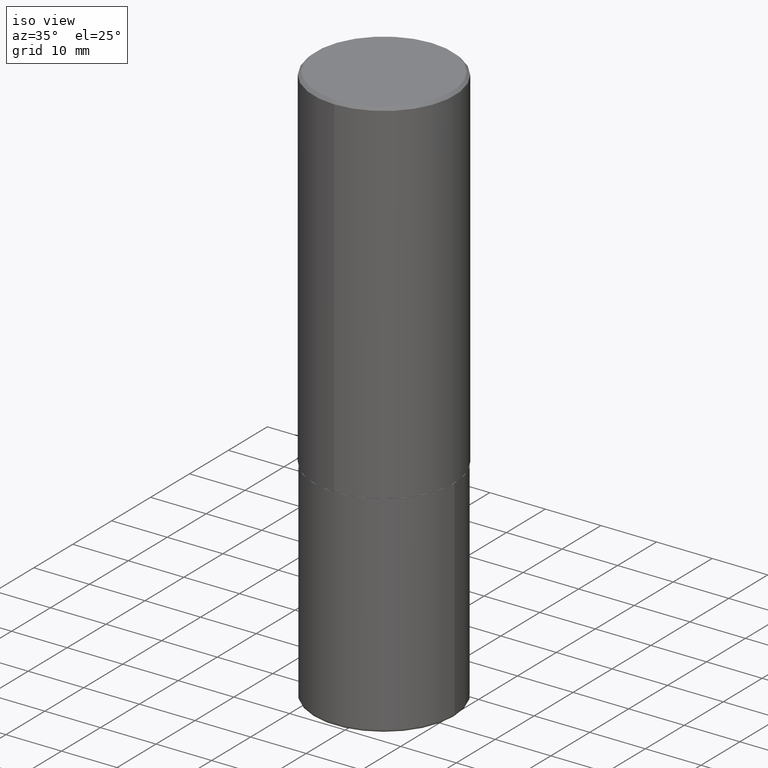
[diagram: clean part render]
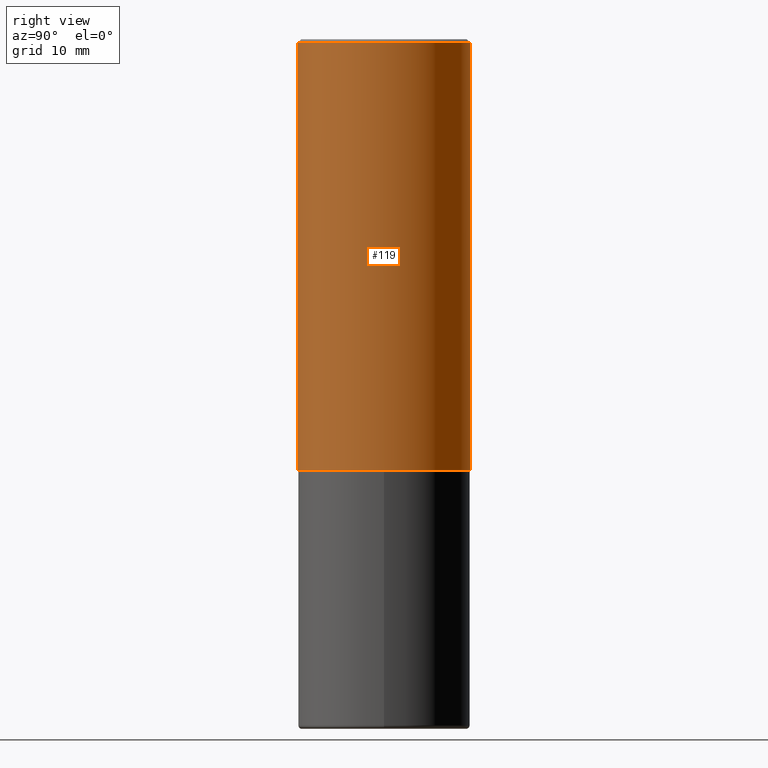
[diagram: tour spotlight — one face highlighted and labeled with its STEP entity id]
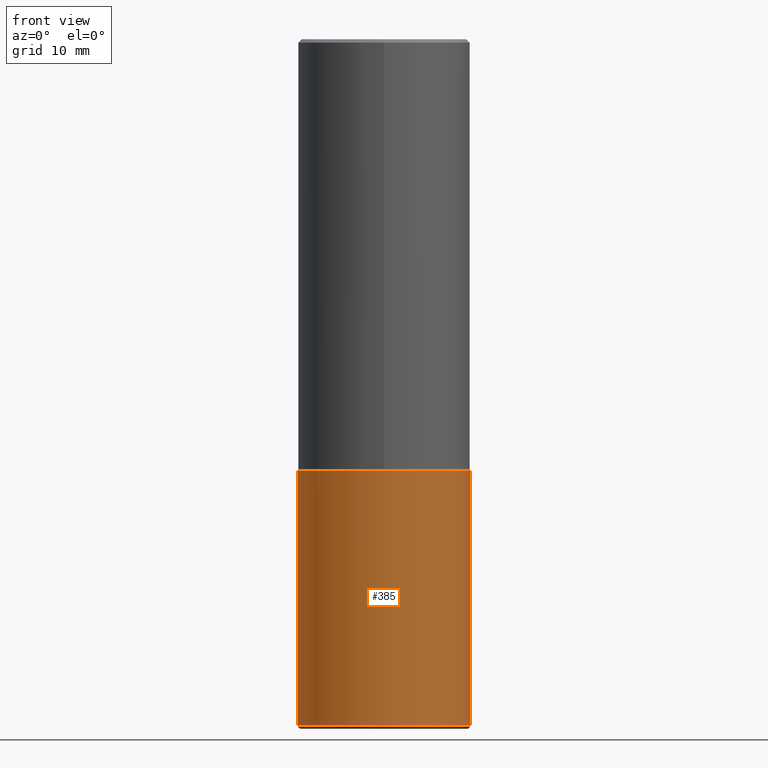
[diagram: tour spotlight — one face highlighted and labeled with its STEP entity id]
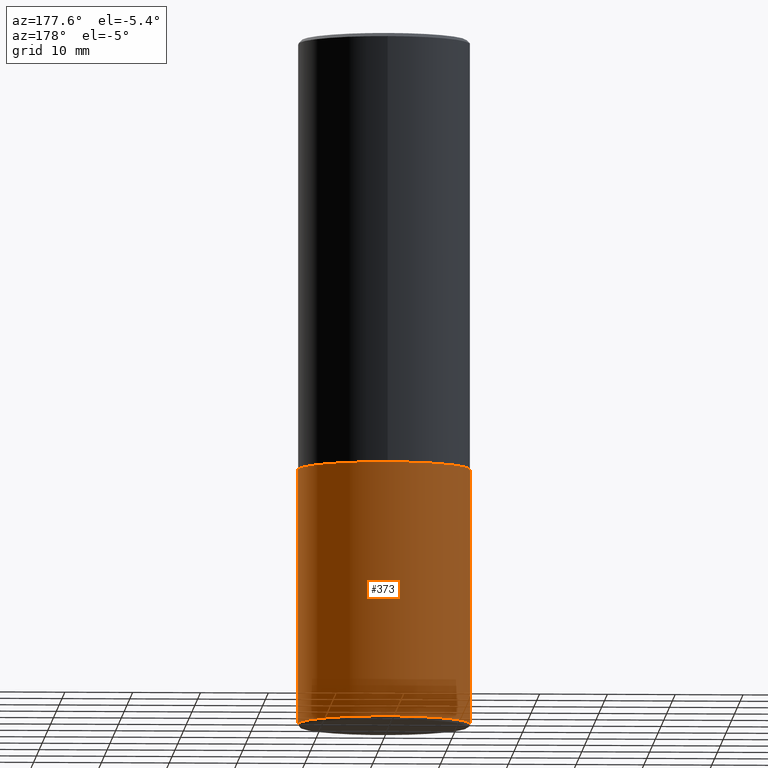
[diagram: tour spotlight — one face highlighted and labeled with its STEP entity id]
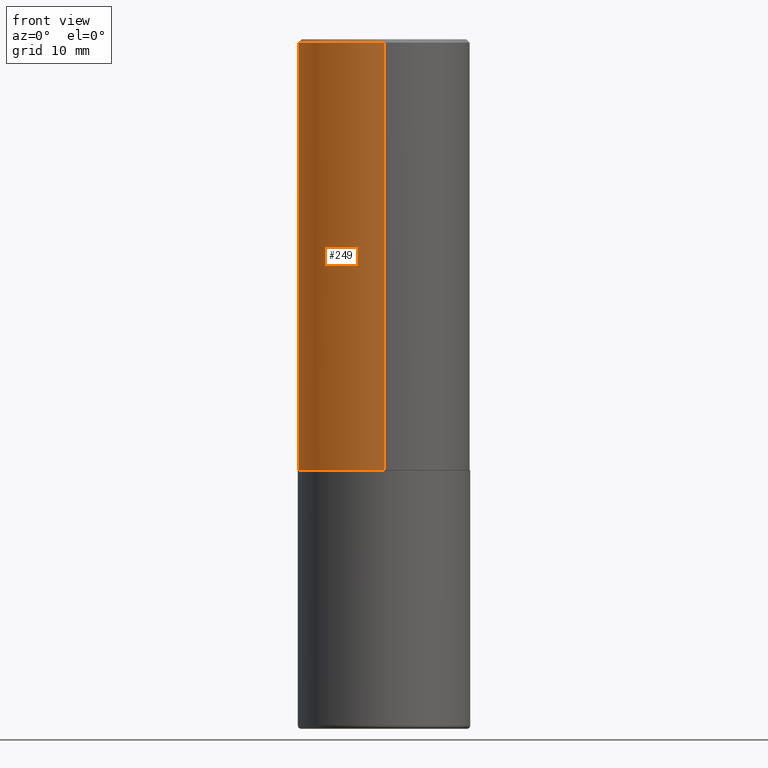
[diagram: tour spotlight — one face highlighted and labeled with its STEP entity id]
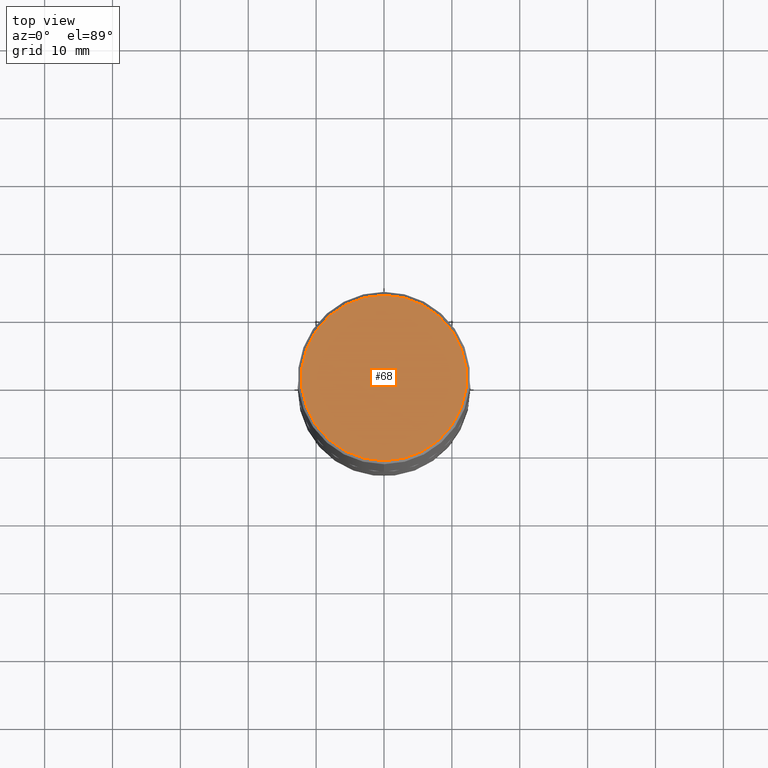
[diagram: tour spotlight — one face highlighted and labeled with its STEP entity id]
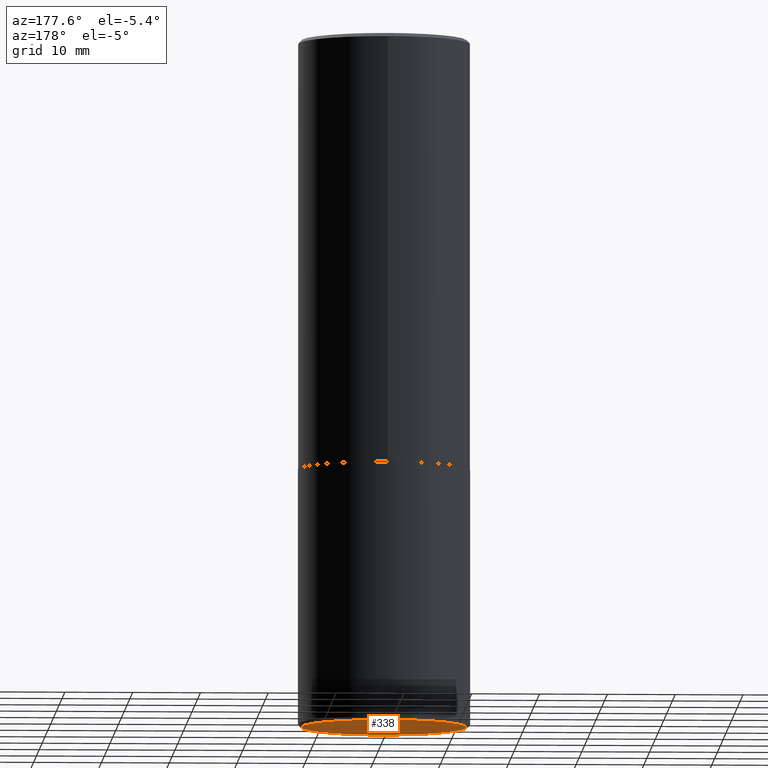
[diagram: tour spotlight — one face highlighted and labeled with its STEP entity id]
A machine part: a face-by-face anatomy tour. The part has 14 B-rep faces; the first image is the clean iso view, then the 6 largest visible faces are spotlighted one at a time (largest first), each with its STEP entity span.

Face 1 — right view, entity #119. In plain terms, the highlighted cylindrical surface (partial cylindrical patch) has radius 12.7 mm, axis along (-0, 0, 1).
Definition (entity closure, byte-faithful):
#1 = ORIENTED_EDGE ( 'NONE', *, *, #32, .T. ) ;
#13 = DIRECTION ( 'NONE',  ( -2.444395862887114472E-29, 3.493017854714053009E-15, 1.000000000000000000 ) ) ;
#19 = CARTESIAN_POINT ( 'NONE',  ( 4.888791725774256270E-31, -6.986035709428142848E-17, -0.02000000000000010797 ) ) ;
#32 = EDGE_CURVE ( 'NONE', #136, #112, #281, .T. ) ;
#37 = VECTOR ( 'NONE', #416, 39.37007874015748143 ) ;
#55 = DIRECTION ( 'NONE',  ( -2.444395862887114472E-29, 3.493017854714053009E-15, 1.000000000000000000 ) ) ;
#65 = LINE ( 'NONE', #293, #298 ) ;
#70 = CARTESIAN_POINT ( 'NONE',  ( 0.000000000000000000, 0.000000000000000000, 0.000000000000000000 ) ) ;
#90 = CIRCLE ( 'NONE', #236, 0.5000000000000000000 ) ;
#99 = CARTESIAN_POINT ( 'NONE',  ( 3.491481338843133355E-15, 0.4999999999999999445, -0.02000000000000185310 ) ) ;
#100 = DIRECTION ( 'NONE',  ( -2.444395862887114472E-29, 3.493017854714053009E-15, 1.000000000000000000 ) ) ;
#112 = VERTEX_POINT ( 'NONE', #128 ) ;
#119 = ADVANCED_FACE ( 'NONE', ( #230 ), #224, .T. ) ;
#128 = CARTESIAN_POINT ( 'NONE',  ( 3.552713678800533273E-15, 0.4999999999999916178, -2.499000000000001886 ) ) ;
#136 = VERTEX_POINT ( 'NONE', #295 ) ;
#151 = EDGE_CURVE ( 'NONE', #136, #325, #65, .T. ) ;
#164 = EDGE_CURVE ( 'NONE', #112, #179, #384, .T. ) ;
#171 = ORIENTED_EDGE ( 'NONE', *, *, #164, .T. ) ;
#172 = EDGE_LOOP ( 'NONE', ( #1, #171, #206, #207 ) ) ;
#179 = VERTEX_POINT ( 'NONE', #99 ) ;
#191 = CARTESIAN_POINT ( 'NONE',  ( 3.552713678800501718E-15, 0.5000000000000001110, -1.746508927357027096E-15 ) ) ;
#204 = AXIS2_PLACEMENT_3D ( 'NONE', #368, #55, #372 ) ;
#206 = ORIENTED_EDGE ( 'NONE', *, *, #318, .F. ) ;
#207 = ORIENTED_EDGE ( 'NONE', *, *, #151, .F. ) ;
#224 = CYLINDRICAL_SURFACE ( 'NONE', #235, 0.5000000000000001110 ) ;
#230 = FACE_OUTER_BOUND ( 'NONE', #172, .T. ) ;
#235 = AXIS2_PLACEMENT_3D ( 'NONE', #70, #100, #380 ) ;
#236 = AXIS2_PLACEMENT_3D ( 'NONE', #19, #13, #286 ) ;
#269 = DIRECTION ( 'NONE',  ( -2.444395862887114192E-29, 3.493017854714053009E-15, 1.000000000000000000 ) ) ;
#280 = CARTESIAN_POINT ( 'NONE',  ( -3.430248998885764992E-15, -0.5000000000000001110, -0.01999999999999835937 ) ) ;
#281 = CIRCLE ( 'NONE', #204, 0.5000000000000002220 ) ;
#286 = DIRECTION ( 'NONE',  ( -6.982962677686265922E-15, -1.000000000000000000, 3.491643216902136408E-15 ) ) ;
#293 = CARTESIAN_POINT ( 'NONE',  ( -3.491481338843133750E-15, -0.5000000000000001110, 1.746508927357027096E-15 ) ) ;
#295 = CARTESIAN_POINT ( 'NONE',  ( -3.491481338843073796E-15, -0.5000000000000089928, -2.498999999999998778 ) ) ;
#298 = VECTOR ( 'NONE', #269, 39.37007874015748143 ) ;
#318 = EDGE_CURVE ( 'NONE', #325, #179, #90, .T. ) ;
#325 = VERTEX_POINT ( 'NONE', #280 ) ;
#368 = CARTESIAN_POINT ( 'NONE',  ( 6.108545261354899927E-29, -8.729051618930419607E-15, -2.499000000000000110 ) ) ;
#372 = DIRECTION ( 'NONE',  ( -6.982962677686266711E-15, -1.000000000000000000, 3.278217592397114284E-15 ) ) ;
#380 = DIRECTION ( 'NONE',  ( -6.982962677686265922E-15, -1.000000000000000000, 3.493017854714053404E-15 ) ) ;
#384 = LINE ( 'NONE', #191, #37 ) ;
#416 = DIRECTION ( 'NONE',  ( -2.444395862887114192E-29, 3.493017854714053009E-15, 1.000000000000000000 ) ) ;

Face 2 — front view, entity #385. In plain terms, the highlighted cylindrical surface (partial cylindrical patch) has radius 12.7 mm, axis along (-0, 0, 1).
Definition (entity closure, byte-faithful):
#9 = LINE ( 'NONE', #78, #97 ) ;
#27 = FACE_OUTER_BOUND ( 'NONE', #282, .T. ) ;
#46 = EDGE_CURVE ( 'NONE', #102, #127, #387, .T. ) ;
#71 = CARTESIAN_POINT ( 'NONE',  ( 0.5000000000000000000, -3.491481338843133355E-15, 2.438088387897967896E-29 ) ) ;
#73 = CARTESIAN_POINT ( 'NONE',  ( 9.732965848616844417E-29, -1.389609572859572061E-14, -3.979999999999999982 ) ) ;
#78 = CARTESIAN_POINT ( 'NONE',  ( -0.5000000000000000000, 3.552713678800500929E-15, -2.459467545127452891E-29 ) ) ;
#81 = AXIS2_PLACEMENT_3D ( 'NONE', #314, #154, #178 ) ;
#87 = CARTESIAN_POINT ( 'NONE',  ( 0.000000000000000000, 0.000000000000000000, 0.000000000000000000 ) ) ;
#89 = CARTESIAN_POINT ( 'NONE',  ( -0.4999999999999998335, -1.034338204979522126E-14, -3.979999999999999982 ) ) ;
#97 = VECTOR ( 'NONE', #334, 39.37007874015748143 ) ;
#102 = VERTEX_POINT ( 'NONE', #145 ) ;
#106 = VECTOR ( 'NONE', #323, 39.37007874015748143 ) ;
#127 = VERTEX_POINT ( 'NONE', #360 ) ;
#145 = CARTESIAN_POINT ( 'NONE',  ( -0.5000000000000000000, -7.759685859051291847E-15, -2.500000000000000000 ) ) ;
#147 = EDGE_CURVE ( 'NONE', #195, #127, #271, .T. ) ;
#154 = DIRECTION ( 'NONE',  ( -2.445468806185136597E-29, 3.491481338843145583E-15, 1.000000000000000000 ) ) ;
#162 = CARTESIAN_POINT ( 'NONE',  ( 0.4999999999999998335, -1.738757706743885397E-14, -3.979999999999999982 ) ) ;
#178 = DIRECTION ( 'NONE',  ( 1.000000000000000000, -6.982962677686269077E-15, 0.000000000000000000 ) ) ;
#183 = AXIS2_PLACEMENT_3D ( 'NONE', #73, #227, #386 ) ;
#195 = VERTEX_POINT ( 'NONE', #162 ) ;
#198 = ORIENTED_EDGE ( 'NONE', *, *, #202, .T. ) ;
#202 = EDGE_CURVE ( 'NONE', #362, #195, #262, .T. ) ;
#220 = DIRECTION ( 'NONE',  ( 1.000000000000000000, -6.982962677686266711E-15, 4.876176775795935793E-29 ) ) ;
#227 = DIRECTION ( 'NONE',  ( -2.445468806185136597E-29, 3.491481338843145583E-15, 1.000000000000000000 ) ) ;
#251 = CYLINDRICAL_SURFACE ( 'NONE', #272, 0.5000000000000000000 ) ;
#262 = CIRCLE ( 'NONE', #183, 0.4999999999999999445 ) ;
#271 = LINE ( 'NONE', #71, #106 ) ;
#272 = AXIS2_PLACEMENT_3D ( 'NONE', #87, #342, #220 ) ;
#275 = ORIENTED_EDGE ( 'NONE', *, *, #46, .F. ) ;
#277 = ORIENTED_EDGE ( 'NONE', *, *, #147, .T. ) ;
#282 = EDGE_LOOP ( 'NONE', ( #391, #198, #277, #275 ) ) ;
#296 = EDGE_CURVE ( 'NONE', #362, #102, #9, .T. ) ;
#314 = CARTESIAN_POINT ( 'NONE',  ( 6.113672015462842613E-29, -8.728703347107864943E-15, -2.500000000000000000 ) ) ;
#323 = DIRECTION ( 'NONE',  ( -2.445468806185136877E-29, 3.491481338843145188E-15, 1.000000000000000000 ) ) ;
#334 = DIRECTION ( 'NONE',  ( -2.445468806185136877E-29, 3.491481338843145188E-15, 1.000000000000000000 ) ) ;
#342 = DIRECTION ( 'NONE',  ( -2.445468806185136597E-29, 3.491481338843145583E-15, 1.000000000000000000 ) ) ;
#360 = CARTESIAN_POINT ( 'NONE',  ( 0.5000000000000000000, -1.222018468595099830E-14, -2.500000000000000000 ) ) ;
#362 = VERTEX_POINT ( 'NONE', #89 ) ;
#385 = ADVANCED_FACE ( 'NONE', ( #27 ), #251, .T. ) ;
#386 = DIRECTION ( 'NONE',  ( 1.000000000000000000, -6.982962677686267499E-15, 0.000000000000000000 ) ) ;
#387 = CIRCLE ( 'NONE', #81, 0.5000000000000000000 ) ;
#391 = ORIENTED_EDGE ( 'NONE', *, *, #296, .F. ) ;

Face 3 — auxiliary view, entity #373. In plain terms, the highlighted cylindrical surface (partial cylindrical patch) has radius 12.7 mm, axis along (-0, 0, 1).
Definition (entity closure, byte-faithful):
#9 = LINE ( 'NONE', #78, #97 ) ;
#17 = CARTESIAN_POINT ( 'NONE',  ( 0.000000000000000000, 0.000000000000000000, 0.000000000000000000 ) ) ;
#24 = AXIS2_PLACEMENT_3D ( 'NONE', #266, #161, #126 ) ;
#59 = CIRCLE ( 'NONE', #24, 0.4999999999999999445 ) ;
#69 = DIRECTION ( 'NONE',  ( 1.000000000000000000, -6.982962677686266711E-15, 4.876176775795935793E-29 ) ) ;
#71 = CARTESIAN_POINT ( 'NONE',  ( 0.5000000000000000000, -3.491481338843133355E-15, 2.438088387897967896E-29 ) ) ;
#75 = ORIENTED_EDGE ( 'NONE', *, *, #296, .T. ) ;
#78 = CARTESIAN_POINT ( 'NONE',  ( -0.5000000000000000000, 3.552713678800500929E-15, -2.459467545127452891E-29 ) ) ;
#86 = DIRECTION ( 'NONE',  ( -2.445468806185136597E-29, 3.491481338843145583E-15, 1.000000000000000000 ) ) ;
#89 = CARTESIAN_POINT ( 'NONE',  ( -0.4999999999999998335, -1.034338204979522126E-14, -3.979999999999999982 ) ) ;
#97 = VECTOR ( 'NONE', #334, 39.37007874015748143 ) ;
#102 = VERTEX_POINT ( 'NONE', #145 ) ;
#106 = VECTOR ( 'NONE', #323, 39.37007874015748143 ) ;
#126 = DIRECTION ( 'NONE',  ( 1.000000000000000000, -6.982962677686267499E-15, 0.000000000000000000 ) ) ;
#127 = VERTEX_POINT ( 'NONE', #360 ) ;
#133 = EDGE_CURVE ( 'NONE', #195, #362, #59, .T. ) ;
#145 = CARTESIAN_POINT ( 'NONE',  ( -0.5000000000000000000, -7.759685859051291847E-15, -2.500000000000000000 ) ) ;
#147 = EDGE_CURVE ( 'NONE', #195, #127, #271, .T. ) ;
#149 = DIRECTION ( 'NONE',  ( 1.000000000000000000, -6.982962677686269077E-15, 0.000000000000000000 ) ) ;
#161 = DIRECTION ( 'NONE',  ( -2.445468806185136597E-29, 3.491481338843145583E-15, 1.000000000000000000 ) ) ;
#162 = CARTESIAN_POINT ( 'NONE',  ( 0.4999999999999998335, -1.738757706743885397E-14, -3.979999999999999982 ) ) ;
#163 = CARTESIAN_POINT ( 'NONE',  ( 6.113672015462842613E-29, -8.728703347107864943E-15, -2.500000000000000000 ) ) ;
#169 = ORIENTED_EDGE ( 'NONE', *, *, #133, .T. ) ;
#173 = AXIS2_PLACEMENT_3D ( 'NONE', #163, #86, #149 ) ;
#195 = VERTEX_POINT ( 'NONE', #162 ) ;
#216 = CYLINDRICAL_SURFACE ( 'NONE', #225, 0.5000000000000000000 ) ;
#225 = AXIS2_PLACEMENT_3D ( 'NONE', #17, #229, #69 ) ;
#229 = DIRECTION ( 'NONE',  ( -2.445468806185136597E-29, 3.491481338843145583E-15, 1.000000000000000000 ) ) ;
#266 = CARTESIAN_POINT ( 'NONE',  ( 9.732965848616844417E-29, -1.389609572859572061E-14, -3.979999999999999982 ) ) ;
#271 = LINE ( 'NONE', #71, #106 ) ;
#296 = EDGE_CURVE ( 'NONE', #362, #102, #9, .T. ) ;
#297 = ORIENTED_EDGE ( 'NONE', *, *, #304, .F. ) ;
#304 = EDGE_CURVE ( 'NONE', #127, #102, #324, .T. ) ;
#307 = ORIENTED_EDGE ( 'NONE', *, *, #147, .F. ) ;
#323 = DIRECTION ( 'NONE',  ( -2.445468806185136877E-29, 3.491481338843145188E-15, 1.000000000000000000 ) ) ;
#324 = CIRCLE ( 'NONE', #173, 0.5000000000000000000 ) ;
#330 = EDGE_LOOP ( 'NONE', ( #169, #75, #297, #307 ) ) ;
#334 = DIRECTION ( 'NONE',  ( -2.445468806185136877E-29, 3.491481338843145188E-15, 1.000000000000000000 ) ) ;
#339 = FACE_OUTER_BOUND ( 'NONE', #330, .T. ) ;
#360 = CARTESIAN_POINT ( 'NONE',  ( 0.5000000000000000000, -1.222018468595099830E-14, -2.500000000000000000 ) ) ;
#362 = VERTEX_POINT ( 'NONE', #89 ) ;
#373 = ADVANCED_FACE ( 'NONE', ( #339 ), #216, .T. ) ;

Face 4 — front view, entity #249. In plain terms, the highlighted cylindrical surface (partial cylindrical patch) has radius 12.7 mm, axis along (-0, 0, 1).
Definition (entity closure, byte-faithful):
#5 = CYLINDRICAL_SURFACE ( 'NONE', #306, 0.5000000000000001110 ) ;
#12 = ORIENTED_EDGE ( 'NONE', *, *, #151, .T. ) ;
#25 = AXIS2_PLACEMENT_3D ( 'NONE', #257, #337, #144 ) ;
#37 = VECTOR ( 'NONE', #416, 39.37007874015748143 ) ;
#45 = ORIENTED_EDGE ( 'NONE', *, *, #320, .T. ) ;
#65 = LINE ( 'NONE', #293, #298 ) ;
#67 = EDGE_LOOP ( 'NONE', ( #363, #45, #12, #398 ) ) ;
#99 = CARTESIAN_POINT ( 'NONE',  ( 3.491481338843133355E-15, 0.4999999999999999445, -0.02000000000000185310 ) ) ;
#101 = CIRCLE ( 'NONE', #25, 0.5000000000000002220 ) ;
#112 = VERTEX_POINT ( 'NONE', #128 ) ;
#128 = CARTESIAN_POINT ( 'NONE',  ( 3.552713678800533273E-15, 0.4999999999999916178, -2.499000000000001886 ) ) ;
#134 = CARTESIAN_POINT ( 'NONE',  ( 0.000000000000000000, 0.000000000000000000, 0.000000000000000000 ) ) ;
#136 = VERTEX_POINT ( 'NONE', #295 ) ;
#144 = DIRECTION ( 'NONE',  ( -6.982962677686266711E-15, -1.000000000000000000, 3.278217592397114284E-15 ) ) ;
#151 = EDGE_CURVE ( 'NONE', #136, #325, #65, .T. ) ;
#157 = DIRECTION ( 'NONE',  ( -6.982962677686265922E-15, -1.000000000000000000, 3.491643216902136408E-15 ) ) ;
#164 = EDGE_CURVE ( 'NONE', #112, #179, #384, .T. ) ;
#168 = FACE_OUTER_BOUND ( 'NONE', #67, .T. ) ;
#179 = VERTEX_POINT ( 'NONE', #99 ) ;
#180 = EDGE_CURVE ( 'NONE', #179, #325, #351, .T. ) ;
#191 = CARTESIAN_POINT ( 'NONE',  ( 3.552713678800501718E-15, 0.5000000000000001110, -1.746508927357027096E-15 ) ) ;
#234 = CARTESIAN_POINT ( 'NONE',  ( 4.888791725774256270E-31, -6.986035709428142848E-17, -0.02000000000000010797 ) ) ;
#249 = ADVANCED_FACE ( 'NONE', ( #168 ), #5, .T. ) ;
#257 = CARTESIAN_POINT ( 'NONE',  ( 6.108545261354899927E-29, -8.729051618930419607E-15, -2.499000000000000110 ) ) ;
#269 = DIRECTION ( 'NONE',  ( -2.444395862887114192E-29, 3.493017854714053009E-15, 1.000000000000000000 ) ) ;
#280 = CARTESIAN_POINT ( 'NONE',  ( -3.430248998885764992E-15, -0.5000000000000001110, -0.01999999999999835937 ) ) ;
#293 = CARTESIAN_POINT ( 'NONE',  ( -3.491481338843133750E-15, -0.5000000000000001110, 1.746508927357027096E-15 ) ) ;
#295 = CARTESIAN_POINT ( 'NONE',  ( -3.491481338843073796E-15, -0.5000000000000089928, -2.498999999999998778 ) ) ;
#298 = VECTOR ( 'NONE', #269, 39.37007874015748143 ) ;
#306 = AXIS2_PLACEMENT_3D ( 'NONE', #134, #390, #331 ) ;
#320 = EDGE_CURVE ( 'NONE', #112, #136, #101, .T. ) ;
#325 = VERTEX_POINT ( 'NONE', #280 ) ;
#329 = AXIS2_PLACEMENT_3D ( 'NONE', #234, #356, #157 ) ;
#331 = DIRECTION ( 'NONE',  ( -6.982962677686265922E-15, -1.000000000000000000, 3.493017854714053404E-15 ) ) ;
#337 = DIRECTION ( 'NONE',  ( -2.444395862887114472E-29, 3.493017854714053009E-15, 1.000000000000000000 ) ) ;
#351 = CIRCLE ( 'NONE', #329, 0.5000000000000000000 ) ;
#356 = DIRECTION ( 'NONE',  ( -2.444395862887114472E-29, 3.493017854714053009E-15, 1.000000000000000000 ) ) ;
#363 = ORIENTED_EDGE ( 'NONE', *, *, #164, .F. ) ;
#384 = LINE ( 'NONE', #191, #37 ) ;
#390 = DIRECTION ( 'NONE',  ( -2.444395862887114472E-29, 3.493017854714053009E-15, 1.000000000000000000 ) ) ;
#398 = ORIENTED_EDGE ( 'NONE', *, *, #180, .F. ) ;
#416 = DIRECTION ( 'NONE',  ( -2.444395862887114192E-29, 3.493017854714053009E-15, 1.000000000000000000 ) ) ;

Face 5 — top view, entity #68. In plain terms, the highlighted planar face has unit normal (0, -0, -1).
Definition (entity closure, byte-faithful):
#14 = DIRECTION ( 'NONE',  ( 2.444395862887114472E-29, -3.493017854714053009E-15, -1.000000000000000000 ) ) ;
#15 = AXIS2_PLACEMENT_3D ( 'NONE', #196, #326, #409 ) ;
#30 = DIRECTION ( 'NONE',  ( -2.444395862887114472E-29, 3.493017854714053009E-15, 1.000000000000000000 ) ) ;
#51 = AXIS2_PLACEMENT_3D ( 'NONE', #291, #30, #159 ) ;
#52 = DIRECTION ( 'NONE',  ( 6.982962677686265922E-15, 1.000000000000000000, -3.493017854714053009E-15 ) ) ;
#68 = ADVANCED_FACE ( 'NONE', ( #254 ), #311, .F. ) ;
#83 = CARTESIAN_POINT ( 'NONE',  ( 3.421651712066269268E-15, 0.4799999999999996492, -1.389920705807981102E-15 ) ) ;
#111 = AXIS2_PLACEMENT_3D ( 'NONE', #252, #14, #52 ) ;
#159 = DIRECTION ( 'NONE',  ( -6.982962677686265922E-15, -1.000000000000000000, 3.493017854714053404E-15 ) ) ;
#177 = ORIENTED_EDGE ( 'NONE', *, *, #228, .T. ) ;
#188 = EDGE_CURVE ( 'NONE', #237, #366, #379, .T. ) ;
#196 = CARTESIAN_POINT ( 'NONE',  ( -7.008764056476804818E-45, 1.001545549984518751E-30, 2.867278644547631726E-16 ) ) ;
#228 = EDGE_CURVE ( 'NONE', #366, #237, #239, .T. ) ;
#237 = VERTEX_POINT ( 'NONE', #382 ) ;
#239 = CIRCLE ( 'NONE', #51, 0.4799999999999996492 ) ;
#250 = EDGE_LOOP ( 'NONE', ( #177, #309 ) ) ;
#252 = CARTESIAN_POINT ( 'NONE',  ( 3.351822085289405181E-15, 0.4799999999999996492, -1.533284638035362713E-15 ) ) ;
#254 = FACE_OUTER_BOUND ( 'NONE', #250, .T. ) ;
#291 = CARTESIAN_POINT ( 'NONE',  ( -7.008764056476804818E-45, 1.001545549984518751E-30, 2.867278644547631726E-16 ) ) ;
#309 = ORIENTED_EDGE ( 'NONE', *, *, #188, .T. ) ;
#311 = PLANE ( 'NONE',  #111 ) ;
#326 = DIRECTION ( 'NONE',  ( -2.444395862887114472E-29, 3.493017854714053009E-15, 1.000000000000000000 ) ) ;
#366 = VERTEX_POINT ( 'NONE', #83 ) ;
#379 = CIRCLE ( 'NONE', #15, 0.4799999999999996492 ) ;
#382 = CARTESIAN_POINT ( 'NONE',  ( -3.361644018908048478E-15, -0.4799999999999996492, 1.963376434717507152E-15 ) ) ;
#409 = DIRECTION ( 'NONE',  ( -6.982962677686265922E-15, -1.000000000000000000, 3.493017854714053404E-15 ) ) ;

Face 6 — auxiliary view, entity #338. In plain terms, the highlighted planar face has unit normal (0, -0, -1).
Definition (entity closure, byte-faithful):
#34 = ORIENTED_EDGE ( 'NONE', *, *, #62, .F. ) ;
#35 = CARTESIAN_POINT ( 'NONE',  ( -0.4799999999999999822, -1.044935113675966299E-14, -4.000000000000000000 ) ) ;
#41 = EDGE_CURVE ( 'NONE', #47, #104, #278, .T. ) ;
#47 = VERTEX_POINT ( 'NONE', #289 ) ;
#50 = FACE_OUTER_BOUND ( 'NONE', #107, .T. ) ;
#62 = EDGE_CURVE ( 'NONE', #104, #47, #165, .T. ) ;
#104 = VERTEX_POINT ( 'NONE', #35 ) ;
#107 = EDGE_LOOP ( 'NONE', ( #401, #34 ) ) ;
#113 = CARTESIAN_POINT ( 'NONE',  ( 9.781875224740546387E-29, -1.396592535537258233E-14, -4.000000000000000000 ) ) ;
#117 = AXIS2_PLACEMENT_3D ( 'NONE', #213, #182, #221 ) ;
#125 = AXIS2_PLACEMENT_3D ( 'NONE', #395, #397, #367 ) ;
#141 = AXIS2_PLACEMENT_3D ( 'NONE', #113, #371, #222 ) ;
#165 = CIRCLE ( 'NONE', #141, 0.4799999999999999822 ) ;
#182 = DIRECTION ( 'NONE',  ( -2.445468806185136597E-29, 3.491481338843145583E-15, 1.000000000000000000 ) ) ;
#213 = CARTESIAN_POINT ( 'NONE',  ( 9.781875224740546387E-29, -1.396592535537258233E-14, -4.000000000000000000 ) ) ;
#221 = DIRECTION ( 'NONE',  ( 1.000000000000000000, -6.982962677686268288E-15, 0.000000000000000000 ) ) ;
#222 = DIRECTION ( 'NONE',  ( 1.000000000000000000, -6.982962677686268288E-15, 0.000000000000000000 ) ) ;
#278 = CIRCLE ( 'NONE', #117, 0.4799999999999999822 ) ;
#284 = PLANE ( 'NONE',  #125 ) ;
#289 = CARTESIAN_POINT ( 'NONE',  ( 0.4799999999999999822, -1.731774744066199067E-14, -4.000000000000000000 ) ) ;
#338 = ADVANCED_FACE ( 'NONE', ( #50 ), #284, .T. ) ;
#367 = DIRECTION ( 'NONE',  ( -1.000000000000000000, 6.982962677686265922E-15, -4.876176775795935793E-29 ) ) ;
#371 = DIRECTION ( 'NONE',  ( -2.445468806185136597E-29, 3.491481338843145583E-15, 1.000000000000000000 ) ) ;
#395 = CARTESIAN_POINT ( 'NONE',  ( 9.781875224740546387E-29, -1.396592535537258233E-14, -4.000000000000000000 ) ) ;
#397 = DIRECTION ( 'NONE',  ( 2.438088387897960049E-29, -3.491481338843145188E-15, -1.000000000000000000 ) ) ;
#401 = ORIENTED_EDGE ( 'NONE', *, *, #41, .F. ) ;